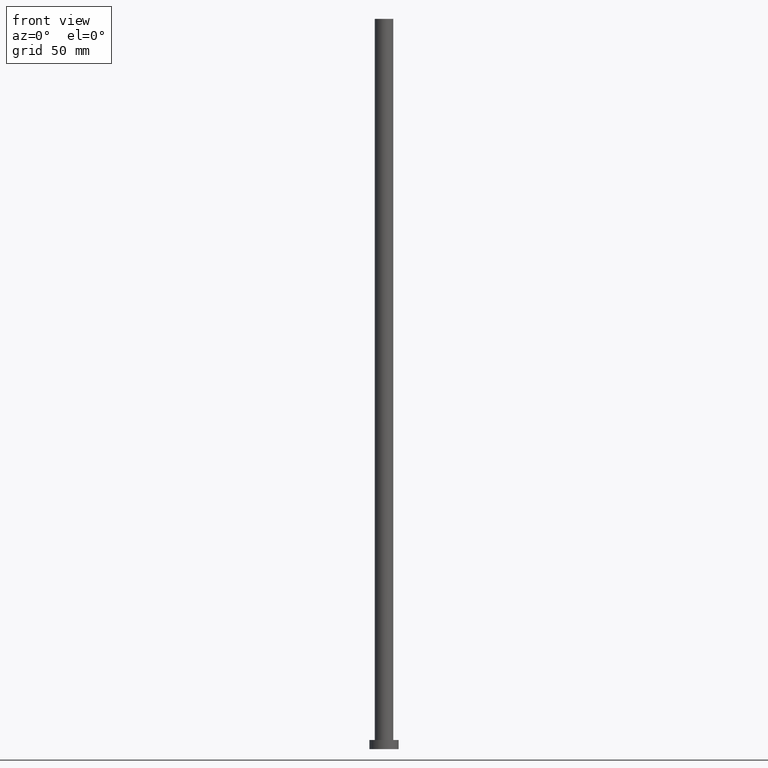
[diagram: clean part render]
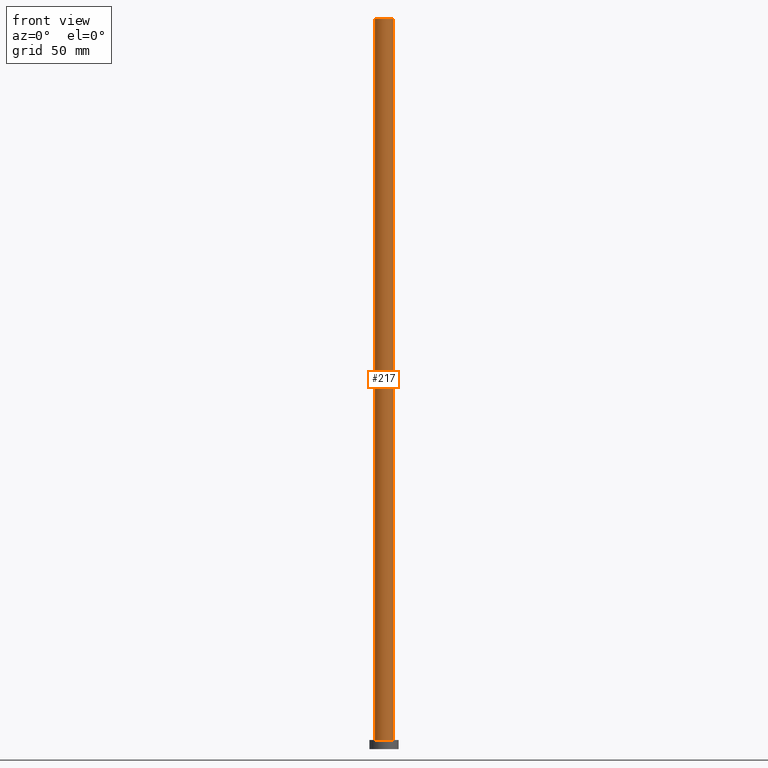
[diagram: same view with one face highlighted and labeled with its STEP entity id]
A machine part, front view. The second image highlights one B-rep face of the part: STEP entity #217.
In plain terms, the highlighted cylindrical surface (edge-blend (fillet) strip) has radius 5.1 mm, axis along (-0, -0, -1).
Its self-contained STEP definition (entity closure, byte-faithful):
#9 = DIRECTION ( 'NONE',  ( -0.000000000000000000, -0.000000000000000000, -1.000000000000000000 ) ) ;
#13 = EDGE_LOOP ( 'NONE', ( #35, #139, #180, #25 ) ) ;
#25 = ORIENTED_EDGE ( 'NONE', *, *, #156, .T. ) ;
#26 = VECTOR ( 'NONE', #9, 1000.000000000000000 ) ;
#32 = LINE ( 'NONE', #142, #26 ) ;
#35 = ORIENTED_EDGE ( 'NONE', *, *, #149, .F. ) ;
#48 = DIRECTION ( 'NONE',  ( -0.000000000000000000, -0.000000000000000000, -1.000000000000000000 ) ) ;
#55 = AXIS2_PLACEMENT_3D ( 'NONE', #219, #241, #120 ) ;
#58 = VERTEX_POINT ( 'NONE', #158 ) ;
#60 = EDGE_CURVE ( 'NONE', #62, #58, #177, .T. ) ;
#62 = VERTEX_POINT ( 'NONE', #93 ) ;
#69 = DIRECTION ( 'NONE',  ( -0.000000000000000000, -0.000000000000000000, -1.000000000000000000 ) ) ;
#70 = FACE_OUTER_BOUND ( 'NONE', #13, .T. ) ;
#87 = CARTESIAN_POINT ( 'NONE',  ( 5.099999999999999645, 6.245698675651499853E-16, 5.000000000000000000 ) ) ;
#93 = CARTESIAN_POINT ( 'NONE',  ( -5.099999999999999645, 0.000000000000000000, 400.0000000000000000 ) ) ;
#116 = DIRECTION ( 'NONE',  ( 0.000000000000000000, 0.000000000000000000, 1.000000000000000000 ) ) ;
#119 = CARTESIAN_POINT ( 'NONE',  ( -5.099999999999999645, 0.000000000000000000, 5.000000000000000000 ) ) ;
#120 = DIRECTION ( 'NONE',  ( 1.000000000000000000, 0.000000000000000000, 0.000000000000000000 ) ) ;
#123 = AXIS2_PLACEMENT_3D ( 'NONE', #183, #69, #222 ) ;
#129 = AXIS2_PLACEMENT_3D ( 'NONE', #237, #116, #198 ) ;
#139 = ORIENTED_EDGE ( 'NONE', *, *, #60, .F. ) ;
#142 = CARTESIAN_POINT ( 'NONE',  ( -5.099999999999999645, 0.000000000000000000, 400.0000000000000000 ) ) ;
#145 = CYLINDRICAL_SURFACE ( 'NONE', #123, 5.099999999999999645 ) ;
#149 = EDGE_CURVE ( 'NONE', #58, #255, #163, .T. ) ;
#156 = EDGE_CURVE ( 'NONE', #196, #255, #169, .T. ) ;
#158 = CARTESIAN_POINT ( 'NONE',  ( 5.099999999999999645, 6.245698675651499853E-16, 400.0000000000000000 ) ) ;
#160 = VECTOR ( 'NONE', #48, 1000.000000000000000 ) ;
#163 = LINE ( 'NONE', #242, #160 ) ;
#168 = EDGE_CURVE ( 'NONE', #62, #196, #32, .T. ) ;
#169 = CIRCLE ( 'NONE', #55, 5.099999999999999645 ) ;
#177 = CIRCLE ( 'NONE', #129, 5.099999999999999645 ) ;
#180 = ORIENTED_EDGE ( 'NONE', *, *, #168, .T. ) ;
#183 = CARTESIAN_POINT ( 'NONE',  ( 0.000000000000000000, 0.000000000000000000, 400.0000000000000000 ) ) ;
#196 = VERTEX_POINT ( 'NONE', #119 ) ;
#198 = DIRECTION ( 'NONE',  ( 1.000000000000000000, 0.000000000000000000, 0.000000000000000000 ) ) ;
#217 = ADVANCED_FACE ( 'NONE', ( #70 ), #145, .T. ) ;
#219 = CARTESIAN_POINT ( 'NONE',  ( 0.000000000000000000, 0.000000000000000000, 5.000000000000000000 ) ) ;
#222 = DIRECTION ( 'NONE',  ( -1.000000000000000000, 0.000000000000000000, 0.000000000000000000 ) ) ;
#237 = CARTESIAN_POINT ( 'NONE',  ( 0.000000000000000000, 0.000000000000000000, 400.0000000000000000 ) ) ;
#241 = DIRECTION ( 'NONE',  ( 0.000000000000000000, 0.000000000000000000, 1.000000000000000000 ) ) ;
#242 = CARTESIAN_POINT ( 'NONE',  ( 5.099999999999999645, 6.245698675651499853E-16, 400.0000000000000000 ) ) ;
#255 = VERTEX_POINT ( 'NONE', #87 ) ;